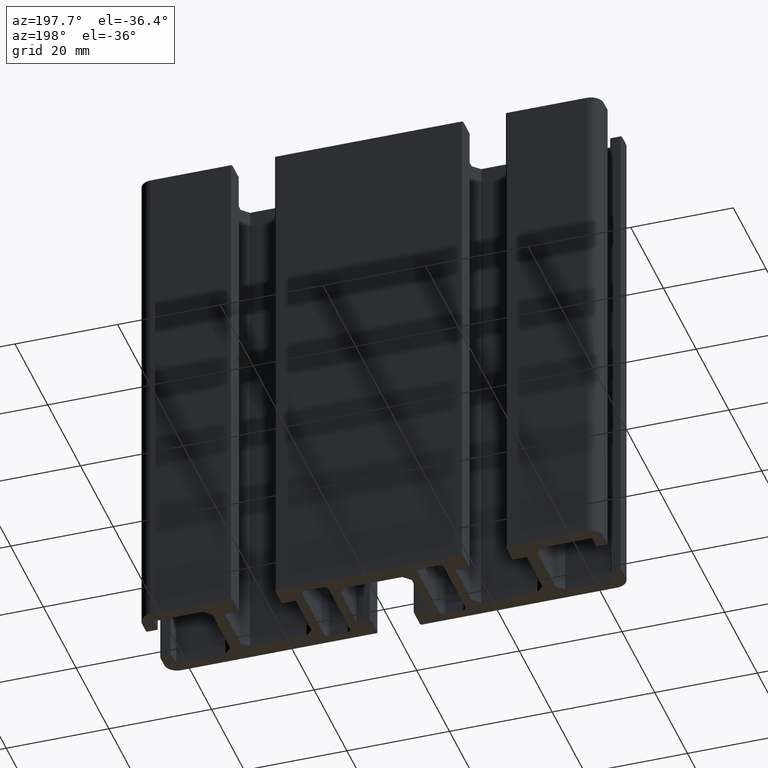
[diagram: clean part render]
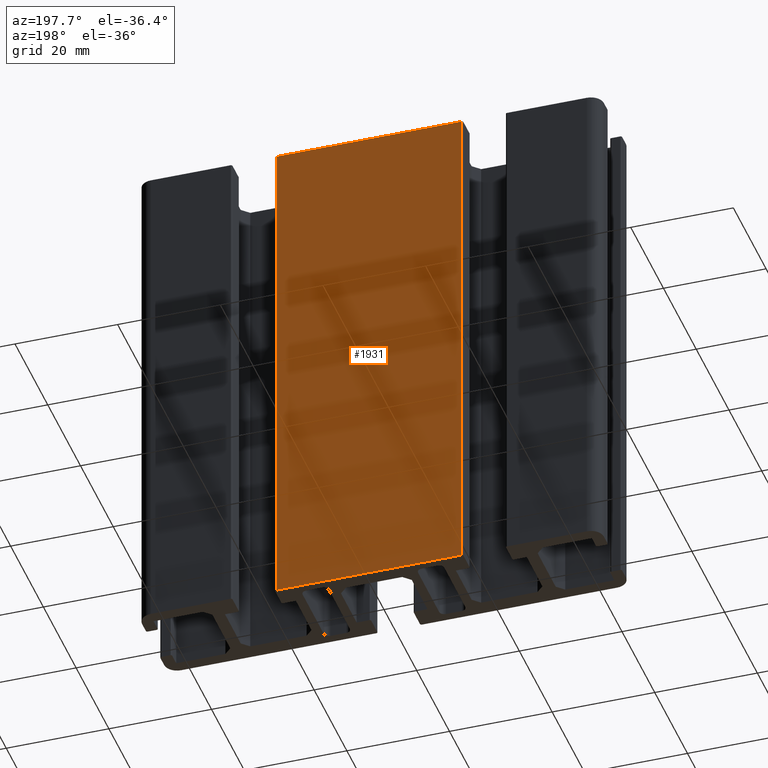
[diagram: same view with one face highlighted and labeled with its STEP entity id]
A machine part, auxiliary view. The second image highlights one B-rep face of the part: STEP entity #1931.
In plain terms, the highlighted planar face has unit normal (0, 1, 0).
Its self-contained STEP definition (entity closure, byte-faithful):
#77=PLANE('',#2085);
#169=FACE_OUTER_BOUND('',#265,.T.);
#265=EDGE_LOOP('',(#1593,#1594,#1595,#1596));
#413=LINE('',#2994,#631);
#435=LINE('',#3054,#653);
#486=LINE('',#3176,#704);
#487=LINE('',#3177,#705);
#631=VECTOR('',#2427,100.);
#653=VECTOR('',#2483,100.);
#704=VECTOR('',#2598,36.1);
#705=VECTOR('',#2599,36.1);
#898=VERTEX_POINT('',#2988);
#900=VERTEX_POINT('',#2992);
#919=VERTEX_POINT('',#3050);
#921=VERTEX_POINT('',#3053);
#1139=EDGE_CURVE('',#898,#900,#413,.T.);
#1168=EDGE_CURVE('',#919,#921,#435,.T.);
#1230=EDGE_CURVE('',#921,#900,#486,.T.);
#1231=EDGE_CURVE('',#919,#898,#487,.T.);
#1593=ORIENTED_EDGE('',*,*,#1139,.T.);
#1594=ORIENTED_EDGE('',*,*,#1230,.F.);
#1595=ORIENTED_EDGE('',*,*,#1168,.F.);
#1596=ORIENTED_EDGE('',*,*,#1231,.T.);
#1931=ADVANCED_FACE('',(#169),#77,.T.);
#2085=AXIS2_PLACEMENT_3D('',#3175,#2596,#2597);
#2427=DIRECTION('',(0.,0.,-1.));
#2483=DIRECTION('',(0.,0.,-1.));
#2596=DIRECTION('center_axis',(0.,1.,0.));
#2597=DIRECTION('ref_axis',(-1.,0.,0.));
#2598=DIRECTION('',(1.,0.,0.));
#2599=DIRECTION('',(1.,0.,0.));
#2988=CARTESIAN_POINT('',(18.0537199999994,9.24999999999,100.));
#2992=CARTESIAN_POINT('',(18.0537199999994,9.24999999999,0.));
#2994=CARTESIAN_POINT('',(18.0537199999994,9.25,0.));
#3050=CARTESIAN_POINT('',(-18.0462800000006,9.24999999999,100.));
#3053=CARTESIAN_POINT('',(-18.0462800000006,9.24999999999,0.));
#3054=CARTESIAN_POINT('',(-18.0462800000006,9.25,0.));
#3175=CARTESIAN_POINT('Origin',(42.5,9.25,0.));
#3176=CARTESIAN_POINT('',(21.25,9.25,0.));
#3177=CARTESIAN_POINT('',(21.25,9.25,100.));